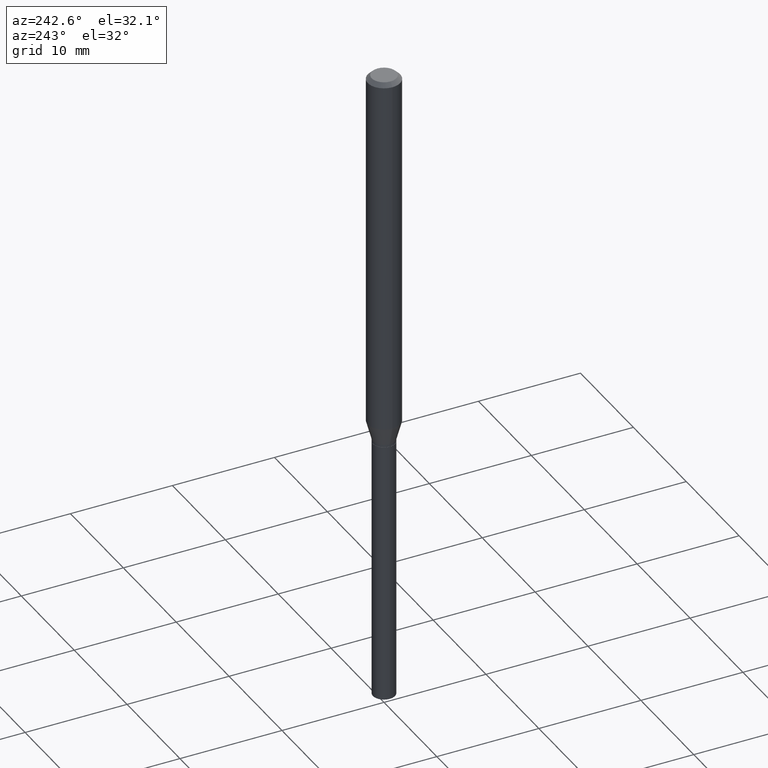
[diagram: clean part render]
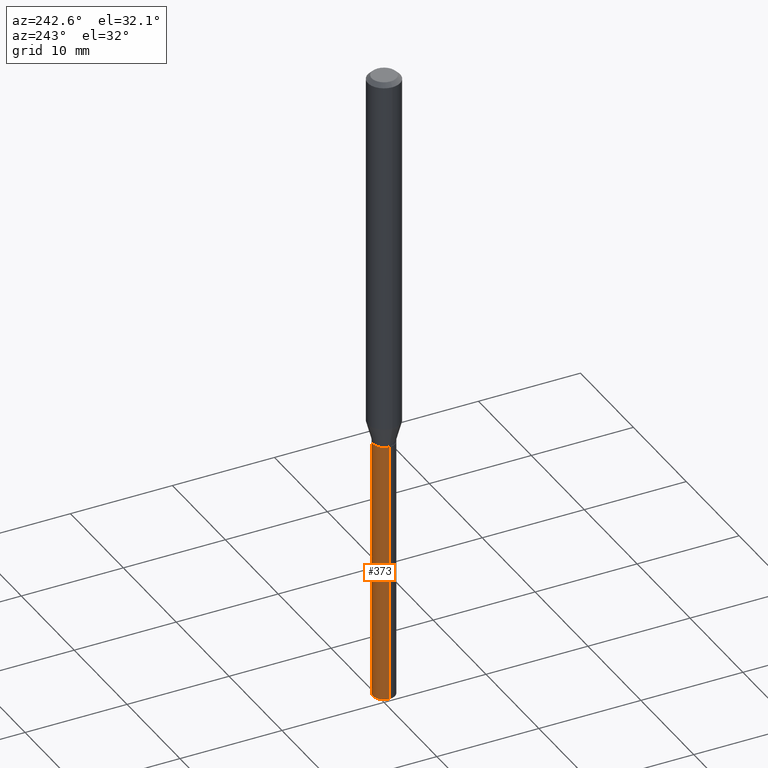
[diagram: same view with one face highlighted and labeled with its STEP entity id]
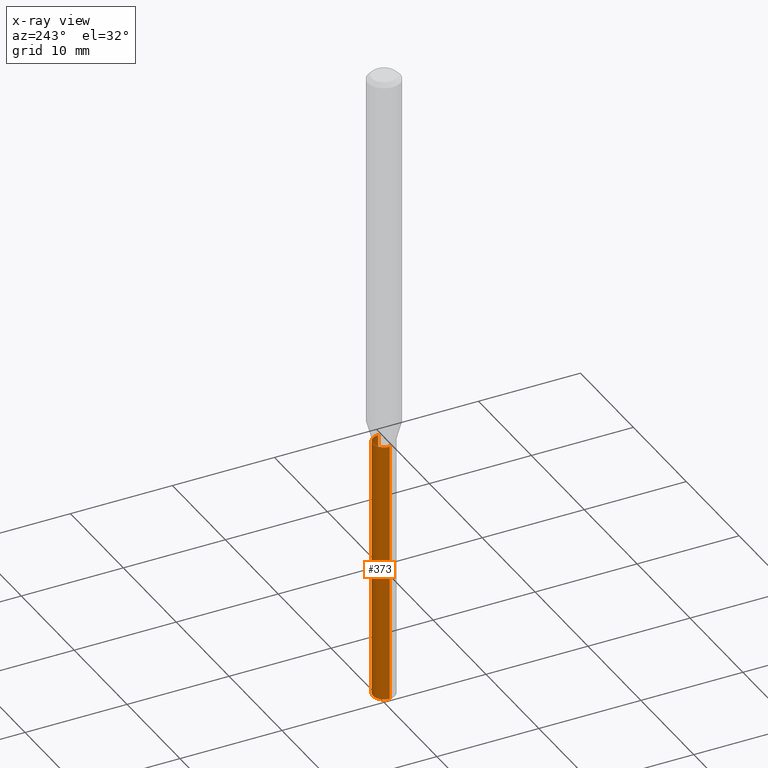
[diagram: x-ray of the same camera — body ghosted, the highlighted face saturated]
A machine part, auxiliary view. The second image highlights one B-rep face of the part: STEP entity #373.
The next image is the same camera in x-ray: the body ghosted, the highlighted face saturated — about 0% of this face is hidden behind the body in this view.
In plain terms, the highlighted cylindrical surface (edge-blend (fillet) strip) has radius 1.0795 mm, axis along (-0, 0, 1).
Its self-contained STEP definition (entity closure, byte-faithful):
#1 = EDGE_CURVE ( 'NONE', #247, #172, #356, .T. ) ;
#2 = CARTESIAN_POINT ( 'NONE',  ( 6.113672015462842613E-29, -8.728703347107864943E-15, -2.500000000000000000 ) ) ;
#30 = CARTESIAN_POINT ( 'NONE',  ( -0.04249999999999999611, -6.646067201599817852E-15, -1.479999999999999982 ) ) ;
#44 = DIRECTION ( 'NONE',  ( -2.445468806185136877E-29, 3.491481338843145188E-15, 1.000000000000000000 ) ) ;
#64 = CARTESIAN_POINT ( 'NONE',  ( 0.04249999999999999611, -2.967759138016663549E-16, 2.072375129713272502E-30 ) ) ;
#65 = EDGE_CURVE ( 'NONE', #98, #325, #283, .T. ) ;
#66 = AXIS2_PLACEMENT_3D ( 'NONE', #109, #371, #192 ) ;
#79 = LINE ( 'NONE', #196, #331 ) ;
#96 = EDGE_CURVE ( 'NONE', #172, #325, #79, .T. ) ;
#98 = VERTEX_POINT ( 'NONE', #245 ) ;
#103 = DIRECTION ( 'NONE',  ( 1.000000000000000000, -6.982962677686267499E-15, 4.876176775795935793E-29 ) ) ;
#106 = ORIENTED_EDGE ( 'NONE', *, *, #1, .T. ) ;
#109 = CARTESIAN_POINT ( 'NONE',  ( 3.619293833154002365E-29, -5.167392381487854879E-15, -1.479999999999999982 ) ) ;
#113 = CARTESIAN_POINT ( 'NONE',  ( -0.04249999999999999611, -6.646067201599817852E-15, -2.500000000000000000 ) ) ;
#145 = EDGE_CURVE ( 'NONE', #247, #98, #169, .T. ) ;
#160 = DIRECTION ( 'NONE',  ( -2.445468806185136597E-29, 3.491481338843145583E-15, 1.000000000000000000 ) ) ;
#166 = ORIENTED_EDGE ( 'NONE', *, *, #145, .F. ) ;
#169 = LINE ( 'NONE', #64, #315 ) ;
#172 = VERTEX_POINT ( 'NONE', #113 ) ;
#192 = DIRECTION ( 'NONE',  ( 1.000000000000000000, -6.982962677686276177E-15, 0.000000000000000000 ) ) ;
#196 = CARTESIAN_POINT ( 'NONE',  ( -0.04249999999999999611, 3.019806626980425514E-16, -2.090547413358334859E-30 ) ) ;
#217 = DIRECTION ( 'NONE',  ( -2.445468806185136877E-29, 3.491481338843145188E-15, 1.000000000000000000 ) ) ;
#226 = EDGE_LOOP ( 'NONE', ( #106, #244, #252, #166 ) ) ;
#244 = ORIENTED_EDGE ( 'NONE', *, *, #96, .T. ) ;
#245 = CARTESIAN_POINT ( 'NONE',  ( 0.04249999999999999611, -5.464168295289522318E-15, -1.479999999999999982 ) ) ;
#247 = VERTEX_POINT ( 'NONE', #254 ) ;
#252 = ORIENTED_EDGE ( 'NONE', *, *, #65, .F. ) ;
#254 = CARTESIAN_POINT ( 'NONE',  ( 0.04249999999999999611, -9.025479260909530016E-15, -2.500000000000000000 ) ) ;
#257 = FACE_OUTER_BOUND ( 'NONE', #226, .T. ) ;
#283 = CIRCLE ( 'NONE', #66, 0.04249999999999999611 ) ;
#308 = DIRECTION ( 'NONE',  ( 1.000000000000000000, -6.982962677686254089E-15, 0.000000000000000000 ) ) ;
#315 = VECTOR ( 'NONE', #217, 39.37007874015748143 ) ;
#325 = VERTEX_POINT ( 'NONE', #30 ) ;
#328 = DIRECTION ( 'NONE',  ( -2.445468806185136597E-29, 3.491481338843145583E-15, 1.000000000000000000 ) ) ;
#331 = VECTOR ( 'NONE', #44, 39.37007874015748143 ) ;
#344 = AXIS2_PLACEMENT_3D ( 'NONE', #392, #328, #103 ) ;
#356 = CIRCLE ( 'NONE', #376, 0.04249999999999999611 ) ;
#358 = CYLINDRICAL_SURFACE ( 'NONE', #344, 0.04249999999999999611 ) ;
#371 = DIRECTION ( 'NONE',  ( -2.445468806185136597E-29, 3.491481338843145583E-15, 1.000000000000000000 ) ) ;
#373 = ADVANCED_FACE ( 'NONE', ( #257 ), #358, .T. ) ;
#376 = AXIS2_PLACEMENT_3D ( 'NONE', #2, #160, #308 ) ;
#392 = CARTESIAN_POINT ( 'NONE',  ( 0.000000000000000000, 0.000000000000000000, 0.000000000000000000 ) ) ;